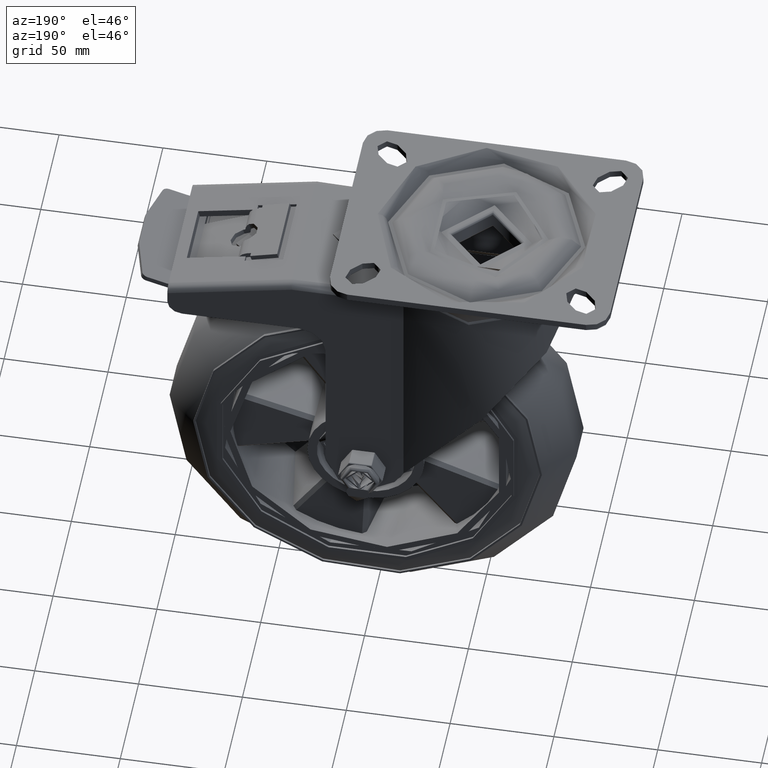
[diagram: clean part render]
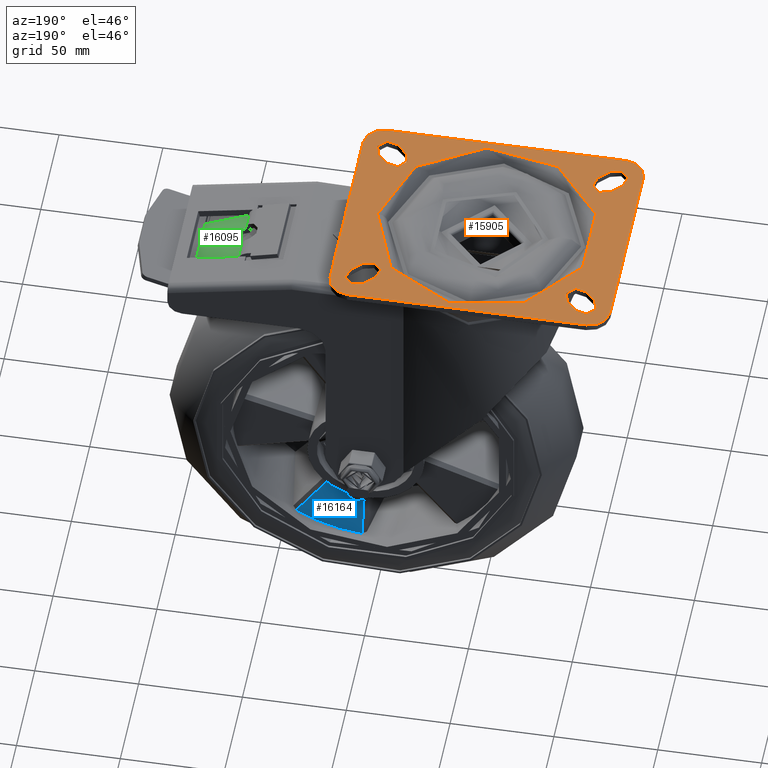
[diagram: same view with three faces highlighted in distinct colors, each labeled with its STEP entity id]
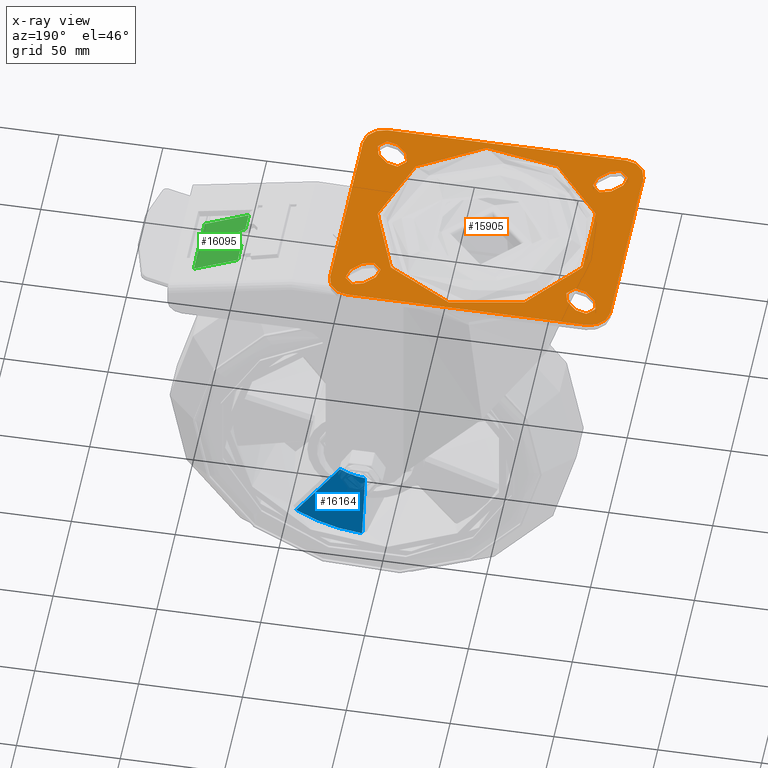
[diagram: x-ray of the same camera — body ghosted, the three highlighted faces saturated]
A machine part, auxiliary view with three faces highlighted in distinct colors.
The next image is the same camera in x-ray (body ghosted, the three faces saturated) — at least one of them is partly hidden behind the body in this view.
Their STEP definitions:

[orange] entity #15905 — the highlighted planar face has unit normal (0, 0, 1).
#807=FACE_BOUND('',#3119,.T.);
#808=FACE_BOUND('',#3120,.T.);
#809=FACE_BOUND('',#3121,.T.);
#810=FACE_BOUND('',#3122,.T.);
#811=FACE_BOUND('',#3123,.T.);
#1002=PLANE('',#17206);
#2161=FACE_OUTER_BOUND('',#3118,.T.);
#3118=EDGE_LOOP('',(#11215,#11216,#11217,#11218,#11219,#11220,#11221,#11222));
#3119=EDGE_LOOP('',(#11223));
#3120=EDGE_LOOP('',(#11224,#11225,#11226,#11227));
#3121=EDGE_LOOP('',(#11228,#11229,#11230,#11231));
#3122=EDGE_LOOP('',(#11232,#11233,#11234,#11235));
#3123=EDGE_LOOP('',(#11236,#11237,#11238,#11239));
#4219=LINE('',#25433,#5310);
#4220=LINE('',#25434,#5311);
#4221=LINE('',#25435,#5312);
#4222=LINE('',#25436,#5313);
#4223=LINE('',#25437,#5314);
#4224=LINE('',#25438,#5315);
#4225=LINE('',#25439,#5316);
#4226=LINE('',#25440,#5317);
#4227=LINE('',#25441,#5318);
#4228=LINE('',#25442,#5319);
#4229=LINE('',#25443,#5320);
#4230=LINE('',#25444,#5321);
#5310=VECTOR('',#18901,1000.);
#5311=VECTOR('',#18902,1000.);
#5312=VECTOR('',#18903,1000.);
#5313=VECTOR('',#18904,1000.);
#5314=VECTOR('',#18905,1000.);
#5315=VECTOR('',#18906,1000.);
#5316=VECTOR('',#18907,1000.);
#5317=VECTOR('',#18908,1000.);
#5318=VECTOR('',#18909,1000.);
#5319=VECTOR('',#18910,1000.);
#5320=VECTOR('',#18911,1000.);
#5321=VECTOR('',#18912,1000.);
#6327=CIRCLE('',#17050,5.5);
#6330=CIRCLE('',#17054,5.5);
#6331=CIRCLE('',#17056,5.5);
#6334=CIRCLE('',#17060,5.5);
#6335=CIRCLE('',#17062,5.5);
#6338=CIRCLE('',#17066,5.5);
#6339=CIRCLE('',#17068,5.5);
#6342=CIRCLE('',#17072,5.5);
#6343=CIRCLE('',#17074,10.);
#6345=CIRCLE('',#17077,10.);
#6347=CIRCLE('',#17080,10.);
#6349=CIRCLE('',#17083,10.);
#6356=CIRCLE('',#17092,52.4937460888595);
#6916=VERTEX_POINT('',#22515);
#6917=VERTEX_POINT('',#22516);
#6922=VERTEX_POINT('',#22527);
#6923=VERTEX_POINT('',#22529);
#6924=VERTEX_POINT('',#22533);
#6925=VERTEX_POINT('',#22534);
#6930=VERTEX_POINT('',#22545);
#6931=VERTEX_POINT('',#22547);
#6932=VERTEX_POINT('',#22551);
#6933=VERTEX_POINT('',#22552);
#6938=VERTEX_POINT('',#22563);
#6939=VERTEX_POINT('',#22565);
#6940=VERTEX_POINT('',#22569);
#6941=VERTEX_POINT('',#22570);
#6946=VERTEX_POINT('',#22581);
#6947=VERTEX_POINT('',#22583);
#6948=VERTEX_POINT('',#22587);
#6949=VERTEX_POINT('',#22588);
#6952=VERTEX_POINT('',#22596);
#6953=VERTEX_POINT('',#22597);
#6956=VERTEX_POINT('',#22605);
#6957=VERTEX_POINT('',#22606);
#6960=VERTEX_POINT('',#22614);
#6961=VERTEX_POINT('',#22615);
#6967=VERTEX_POINT('',#22631);
#8490=EDGE_CURVE('',#6916,#6917,#6327,.T.);
#8496=EDGE_CURVE('',#6923,#6922,#6330,.T.);
#8498=EDGE_CURVE('',#6924,#6925,#6331,.T.);
#8504=EDGE_CURVE('',#6931,#6930,#6334,.T.);
#8506=EDGE_CURVE('',#6932,#6933,#6335,.T.);
#8512=EDGE_CURVE('',#6939,#6938,#6338,.T.);
#8514=EDGE_CURVE('',#6940,#6941,#6339,.T.);
#8520=EDGE_CURVE('',#6947,#6946,#6342,.T.);
#8522=EDGE_CURVE('',#6948,#6949,#6343,.F.);
#8526=EDGE_CURVE('',#6952,#6953,#6345,.F.);
#8530=EDGE_CURVE('',#6956,#6957,#6347,.F.);
#8534=EDGE_CURVE('',#6960,#6961,#6349,.F.);
#8543=EDGE_CURVE('',#6967,#6967,#6356,.T.);
#8689=EDGE_CURVE('',#6953,#6956,#4219,.F.);
#8690=EDGE_CURVE('',#6949,#6952,#4220,.F.);
#8691=EDGE_CURVE('',#6961,#6948,#4221,.F.);
#8692=EDGE_CURVE('',#6957,#6960,#4222,.F.);
#8693=EDGE_CURVE('',#6925,#6931,#4223,.T.);
#8694=EDGE_CURVE('',#6930,#6924,#4224,.T.);
#8695=EDGE_CURVE('',#6917,#6923,#4225,.T.);
#8696=EDGE_CURVE('',#6922,#6916,#4226,.T.);
#8697=EDGE_CURVE('',#6933,#6939,#4227,.T.);
#8698=EDGE_CURVE('',#6938,#6932,#4228,.T.);
#8699=EDGE_CURVE('',#6941,#6947,#4229,.T.);
#8700=EDGE_CURVE('',#6946,#6940,#4230,.T.);
#11215=ORIENTED_EDGE('',*,*,#8530,.F.);
#11216=ORIENTED_EDGE('',*,*,#8689,.F.);
#11217=ORIENTED_EDGE('',*,*,#8526,.F.);
#11218=ORIENTED_EDGE('',*,*,#8690,.F.);
#11219=ORIENTED_EDGE('',*,*,#8522,.F.);
#11220=ORIENTED_EDGE('',*,*,#8691,.F.);
#11221=ORIENTED_EDGE('',*,*,#8534,.F.);
#11222=ORIENTED_EDGE('',*,*,#8692,.F.);
#11223=ORIENTED_EDGE('',*,*,#8543,.F.);
#11224=ORIENTED_EDGE('',*,*,#8498,.T.);
#11225=ORIENTED_EDGE('',*,*,#8693,.T.);
#11226=ORIENTED_EDGE('',*,*,#8504,.T.);
#11227=ORIENTED_EDGE('',*,*,#8694,.T.);
#11228=ORIENTED_EDGE('',*,*,#8490,.T.);
#11229=ORIENTED_EDGE('',*,*,#8695,.T.);
#11230=ORIENTED_EDGE('',*,*,#8496,.T.);
#11231=ORIENTED_EDGE('',*,*,#8696,.T.);
#11232=ORIENTED_EDGE('',*,*,#8506,.T.);
#11233=ORIENTED_EDGE('',*,*,#8697,.T.);
#11234=ORIENTED_EDGE('',*,*,#8512,.T.);
#11235=ORIENTED_EDGE('',*,*,#8698,.T.);
#11236=ORIENTED_EDGE('',*,*,#8514,.T.);
#11237=ORIENTED_EDGE('',*,*,#8699,.T.);
#11238=ORIENTED_EDGE('',*,*,#8520,.T.);
#11239=ORIENTED_EDGE('',*,*,#8700,.T.);
#15905=ADVANCED_FACE('',(#2161,#807,#808,#809,#810,#811),#1002,.T.);
#17050=AXIS2_PLACEMENT_3D('',#22517,#18513,#18514);
#17054=AXIS2_PLACEMENT_3D('',#22530,#18524,#18525);
#17056=AXIS2_PLACEMENT_3D('',#22535,#18529,#18530);
#17060=AXIS2_PLACEMENT_3D('',#22548,#18540,#18541);
#17062=AXIS2_PLACEMENT_3D('',#22553,#18545,#18546);
#17066=AXIS2_PLACEMENT_3D('',#22566,#18556,#18557);
#17068=AXIS2_PLACEMENT_3D('',#22571,#18561,#18562);
#17072=AXIS2_PLACEMENT_3D('',#22584,#18572,#18573);
#17074=AXIS2_PLACEMENT_3D('',#22589,#18577,#18578);
#17077=AXIS2_PLACEMENT_3D('',#22598,#18585,#18586);
#17080=AXIS2_PLACEMENT_3D('',#22607,#18593,#18594);
#17083=AXIS2_PLACEMENT_3D('',#22616,#18601,#18602);
#17092=AXIS2_PLACEMENT_3D('',#22633,#18621,#18622);
#17206=AXIS2_PLACEMENT_3D('',#25432,#18899,#18900);
#18513=DIRECTION('center_axis',(0.,0.,-1.));
#18514=DIRECTION('ref_axis',(1.,0.,0.));
#18524=DIRECTION('center_axis',(0.,0.,-1.));
#18525=DIRECTION('ref_axis',(1.,0.,0.));
#18529=DIRECTION('center_axis',(0.,0.,-1.));
#18530=DIRECTION('ref_axis',(1.,0.,0.));
#18540=DIRECTION('center_axis',(0.,0.,-1.));
#18541=DIRECTION('ref_axis',(1.,0.,0.));
#18545=DIRECTION('center_axis',(0.,0.,-1.));
#18546=DIRECTION('ref_axis',(-1.,0.,0.));
#18556=DIRECTION('center_axis',(0.,0.,-1.));
#18557=DIRECTION('ref_axis',(-1.,0.,0.));
#18561=DIRECTION('center_axis',(0.,0.,-1.));
#18562=DIRECTION('ref_axis',(-1.,0.,0.));
#18572=DIRECTION('center_axis',(0.,0.,-1.));
#18573=DIRECTION('ref_axis',(-1.,0.,0.));
#18577=DIRECTION('center_axis',(0.,0.,1.));
#18578=DIRECTION('ref_axis',(0.707106781186547,0.707106781186548,0.));
#18585=DIRECTION('center_axis',(0.,0.,1.));
#18586=DIRECTION('ref_axis',(0.707106781186547,-0.707106781186548,0.));
#18593=DIRECTION('center_axis',(0.,0.,1.));
#18594=DIRECTION('ref_axis',(-0.707106781186547,-0.707106781186548,0.));
#18601=DIRECTION('center_axis',(0.,0.,1.));
#18602=DIRECTION('ref_axis',(-0.707106781186547,0.707106781186548,0.));
#18621=DIRECTION('center_axis',(0.,0.,1.));
#18622=DIRECTION('ref_axis',(-1.,-9.91644751508222E-17,0.));
#18899=DIRECTION('center_axis',(0.,0.,1.));
#18900=DIRECTION('ref_axis',(1.,0.,0.));
#18901=DIRECTION('',(1.,0.,0.));
#18902=DIRECTION('',(0.,1.,0.));
#18903=DIRECTION('',(-1.,0.,0.));
#18904=DIRECTION('',(0.,-1.,0.));
#18905=DIRECTION('',(-0.707106781186548,-0.707106781186548,0.));
#18906=DIRECTION('',(0.707106781186548,0.707106781186548,0.));
#18907=DIRECTION('',(-0.707106781186548,0.707106781186548,0.));
#18908=DIRECTION('',(0.707106781186548,-0.707106781186548,0.));
#18909=DIRECTION('',(0.707106781186548,0.707106781186548,0.));
#18910=DIRECTION('',(-0.707106781186548,-0.707106781186548,0.));
#18911=DIRECTION('',(0.707106781186548,-0.707106781186548,0.));
#18912=DIRECTION('',(-0.707106781186548,0.707106781186548,0.));
#22515=CARTESIAN_POINT('',(-46.1360389693211,41.4142135623731,0.));
#22516=CARTESIAN_POINT('',(-53.9142135623731,33.6360389693211,0.));
#22517=CARTESIAN_POINT('Origin',(-50.0251262658471,37.5251262658471,0.));
#22527=CARTESIAN_POINT('',(-51.0857864376269,46.3639610306789,0.));
#22529=CARTESIAN_POINT('',(-58.8639610306789,38.5857864376269,0.));
#22530=CARTESIAN_POINT('Origin',(-54.9748737341529,42.4748737341529,0.));
#22533=CARTESIAN_POINT('',(-53.9142135623731,-33.6360389693211,0.));
#22534=CARTESIAN_POINT('',(-46.1360389693211,-41.4142135623731,0.));
#22535=CARTESIAN_POINT('Origin',(-50.0251262658471,-37.5251262658471,0.));
#22545=CARTESIAN_POINT('',(-58.8639610306789,-38.5857864376269,0.));
#22547=CARTESIAN_POINT('',(-51.0857864376269,-46.3639610306789,0.));
#22548=CARTESIAN_POINT('Origin',(-54.9748737341529,-42.4748737341529,0.));
#22551=CARTESIAN_POINT('',(53.9142135623731,33.6360389693211,0.));
#22552=CARTESIAN_POINT('',(46.1360389693211,41.4142135623731,0.));
#22553=CARTESIAN_POINT('Origin',(50.0251262658471,37.5251262658471,0.));
#22563=CARTESIAN_POINT('',(58.8639610306789,38.5857864376269,0.));
#22565=CARTESIAN_POINT('',(51.0857864376269,46.3639610306789,0.));
#22566=CARTESIAN_POINT('Origin',(54.9748737341529,42.4748737341529,0.));
#22569=CARTESIAN_POINT('',(46.1360389693211,-41.4142135623731,0.));
#22570=CARTESIAN_POINT('',(53.9142135623731,-33.6360389693211,0.));
#22571=CARTESIAN_POINT('Origin',(50.0251262658471,-37.5251262658471,0.));
#22581=CARTESIAN_POINT('',(51.0857864376269,-46.3639610306789,0.));
#22583=CARTESIAN_POINT('',(58.8639610306789,-38.5857864376269,0.));
#22584=CARTESIAN_POINT('Origin',(54.9748737341529,-42.4748737341529,0.));
#22587=CARTESIAN_POINT('',(57.5,55.,0.));
#22588=CARTESIAN_POINT('',(67.5,45.,0.));
#22589=CARTESIAN_POINT('Origin',(57.5,45.,0.));
#22596=CARTESIAN_POINT('',(67.5,-45.,0.));
#22597=CARTESIAN_POINT('',(57.5,-55.,0.));
#22598=CARTESIAN_POINT('Origin',(57.5,-45.,0.));
#22605=CARTESIAN_POINT('',(-57.5,-55.,0.));
#22606=CARTESIAN_POINT('',(-67.5,-45.,0.));
#22607=CARTESIAN_POINT('Origin',(-57.5,-45.,0.));
#22614=CARTESIAN_POINT('',(-67.5,45.,0.));
#22615=CARTESIAN_POINT('',(-57.5,55.,0.));
#22616=CARTESIAN_POINT('Origin',(-57.5,45.,0.));
#22631=CARTESIAN_POINT('',(52.4937460888595,1.16341445918998E-14,0.));
#22633=CARTESIAN_POINT('Origin',(0.,0.,0.));
#25432=CARTESIAN_POINT('Origin',(0.,0.,0.));
#25433=CARTESIAN_POINT('',(0.,-55.,0.));
#25434=CARTESIAN_POINT('',(67.5,0.,0.));
#25435=CARTESIAN_POINT('',(0.,55.,0.));
#25436=CARTESIAN_POINT('',(-67.5,0.,0.));
#25437=CARTESIAN_POINT('',(-25.485912703474,-20.764087296526,0.));
#25438=CARTESIAN_POINT('',(-33.264087296526,-12.985912703474,0.));
#25439=CARTESIAN_POINT('',(-33.264087296526,12.985912703474,0.));
#25440=CARTESIAN_POINT('',(-25.485912703474,20.764087296526,0.));
#25441=CARTESIAN_POINT('',(25.485912703474,20.764087296526,0.));
#25442=CARTESIAN_POINT('',(33.264087296526,12.985912703474,0.));
#25443=CARTESIAN_POINT('',(33.264087296526,-12.985912703474,0.));
#25444=CARTESIAN_POINT('',(25.485912703474,-20.764087296526,0.));

[blue] entity #16164 — the highlighted planar face has unit normal (0, -1, 0).
#1146=PLANE('',#17702);
#1568=B_SPLINE_CURVE_WITH_KNOTS('',3,(#30661,#30662,#30663,#30664,#30665,
#30666,#30667,#30668,#30669,#30670,#30671,#30672,#30673,#30674,#30675,#30676,
#30677),.UNSPECIFIED.,.F.,.F.,(4,2,2,2,2,2,2,1,4),(2.10476446793768E-9,
0.0027729427355307,0.0108168889700644,0.0158443553666479,0.0189865218645126,
0.0221286883623774,0.0271561547589609,0.0352001009934946,0.0379170093655938),
 .UNSPECIFIED.);
#1571=B_SPLINE_CURVE_WITH_KNOTS('',3,(#30934,#30935,#30936,#30937,#30938,
#30939,#30940,#30941,#30942,#30943,#30944,#30945,#30946,#30947),
 .UNSPECIFIED.,.F.,.F.,(4,2,2,2,2,2,4),(9.26530815615883E-6,0.00900776466432076,
0.0153816630866576,0.0193653496006181,0.0233490361145786,0.0297229345369154,
0.0379262725688413),.UNSPECIFIED.);
#2420=FACE_OUTER_BOUND('',#3410,.T.);
#3410=EDGE_LOOP('',(#12632,#12633,#12634,#12635));
#6563=CIRCLE('',#17662,66.);
#6568=CIRCLE('',#17668,28.1);
#7479=VERTEX_POINT('',#27789);
#7480=VERTEX_POINT('',#27800);
#7492=VERTEX_POINT('',#27877);
#7493=VERTEX_POINT('',#27888);
#9323=EDGE_CURVE('',#7479,#7480,#6563,.T.);
#9337=EDGE_CURVE('',#7493,#7492,#6568,.T.);
#9420=EDGE_CURVE('',#7493,#7479,#1568,.T.);
#9423=EDGE_CURVE('',#7480,#7492,#1571,.T.);
#12632=ORIENTED_EDGE('',*,*,#9420,.F.);
#12633=ORIENTED_EDGE('',*,*,#9337,.T.);
#12634=ORIENTED_EDGE('',*,*,#9423,.F.);
#12635=ORIENTED_EDGE('',*,*,#9323,.F.);
#16164=ADVANCED_FACE('',(#2420),#1146,.F.);
#17662=AXIS2_PLACEMENT_3D('',#27801,#20202,#20203);
#17668=AXIS2_PLACEMENT_3D('',#27889,#20215,#20216);
#17702=AXIS2_PLACEMENT_3D('',#31061,#20287,#20288);
#20202=DIRECTION('center_axis',(3.59602151677234E-15,-1.,-6.44248801041007E-16));
#20203=DIRECTION('ref_axis',(-0.809016994374947,-2.53056257514779E-15,-0.587785252292473));
#20215=DIRECTION('center_axis',(4.48275391881041E-15,-1.,0.));
#20216=DIRECTION('ref_axis',(-1.,-4.48275391881041E-15,0.));
#20287=DIRECTION('center_axis',(4.48275391881041E-15,-1.,0.));
#20288=DIRECTION('ref_axis',(0.809016994374947,3.62662410191852E-15,0.587785252292473));
#27789=CARTESIAN_POINT('',(3.85641966858817,17.7500000000001,-65.8872372113122));
#27800=CARTESIAN_POINT('',(35.6076372977754,17.7500000000002,-55.5706412242118));
#27801=CARTESIAN_POINT('Origin',(-9.71885671488072E-14,17.7500000000001,
-2.98073805919023E-14));
#27877=CARTESIAN_POINT('',(14.5311521995672,17.7500000000001,-24.0511042523953));
#27888=CARTESIAN_POINT('',(2.38093530355877,17.7500000000001,-27.998949035231));
#27889=CARTESIAN_POINT('Origin',(-6.94760696190698E-14,17.7500000000001,
0.));
#30661=CARTESIAN_POINT('Ctrl Pts',(2.38093530421804,17.7500000000001,-27.9989490350748));
#30662=CARTESIAN_POINT('Ctrl Pts',(2.41680088256069,17.7500000000001,-28.9225664814718));
#30663=CARTESIAN_POINT('Ctrl Pts',(2.45267404906598,17.7500000000001,-29.8461836332057));
#30664=CARTESIAN_POINT('Ctrl Pts',(2.59264023499983,17.7500000000001,-33.4490949049081));
#30665=CARTESIAN_POINT('Ctrl Pts',(2.69678942468149,17.7500000000001,-36.1283868441462));
#30666=CARTESIAN_POINT('Ctrl Pts',(2.866134814894,17.7500000000001,-40.4822322407396));
#30667=CARTESIAN_POINT('Ctrl Pts',(2.93129240516972,17.7500000000001,-42.1567871998993));
#30668=CARTESIAN_POINT('Ctrl Pts',(3.03721352898979,17.7500000000001,-44.8779374493444));
#30669=CARTESIAN_POINT('Ctrl Pts',(3.07796204747033,17.7500000000001,-45.9245333243284));
#30670=CARTESIAN_POINT('Ctrl Pts',(3.15947827700814,17.7500000000001,-48.0177243263985));
#30671=CARTESIAN_POINT('Ctrl Pts',(3.20024598808286,17.7500000000001,-49.0643194539741));
#30672=CARTESIAN_POINT('Ctrl Pts',(3.3062669094256,17.7500000000001,-51.7854658170392));
#30673=CARTESIAN_POINT('Ctrl Pts',(3.37153504371099,17.7500000000001,-53.4600164713307));
#30674=CARTESIAN_POINT('Ctrl Pts',(3.54129552827511,17.7500000000001,-57.8138457032267));
#30675=CARTESIAN_POINT('Ctrl Pts',(3.6811318616994,17.7500000000001,-61.3980704654931));
#30676=CARTESIAN_POINT('Ctrl Pts',(3.82107875376573,17.7500000000001,-64.9822909096335));
#30677=CARTESIAN_POINT('Ctrl Pts',(3.85641966938781,17.7500000000001,-65.8872372114043));
#30934=CARTESIAN_POINT('Ctrl Pts',(35.6076372973672,17.7500000000002,-55.5706412243492));
#30935=CARTESIAN_POINT('Ctrl Pts',(33.940614240845,17.7500000000002,-53.0770428014606));
#30936=CARTESIAN_POINT('Ctrl Pts',(32.273527086298,17.7500000000002,-50.583487229748));
#30937=CARTESIAN_POINT('Ctrl Pts',(29.4254829801681,17.7500000000002,-46.323747844562));
#30938=CARTESIAN_POINT('Ctrl Pts',(28.2445583210435,17.7500000000002,-44.5575424421562));
#30939=CARTESIAN_POINT('Ctrl Pts',(26.32550255613,17.7500000000002,-41.6874942323671));
#30940=CARTESIAN_POINT('Ctrl Pts',(25.5873913985139,17.7500000000002,-40.5836380864087));
#30941=CARTESIAN_POINT('Ctrl Pts',(24.1111434089041,17.7500000000002,-38.3759429627046));
#30942=CARTESIAN_POINT('Ctrl Pts',(23.3730065766267,17.7500000000002,-37.2721039845441));
#30943=CARTESIAN_POINT('Ctrl Pts',(21.4538173126991,17.7500000000002,-34.4021450426104));
#30944=CARTESIAN_POINT('Ctrl Pts',(20.2727447799034,17.7500000000002,-32.6360385203706));
#30945=CARTESIAN_POINT('Ctrl Pts',(17.5715318275288,17.7500000000002,-28.5969673917181));
#30946=CARTESIAN_POINT('Ctrl Pts',(16.0513696360099,17.7500000000001,-26.3240173473063));
#30947=CARTESIAN_POINT('Ctrl Pts',(14.5311521990547,17.7500000000001,-24.0511042529785));
#31061=CARTESIAN_POINT('Origin',(-8.30001424060322E-14,17.7500000000001,
-3.66527757186492E-14));

[green] entity #16095 — the highlighted planar face has unit normal (0.4193, 0, 0.9078).
#54=ELLIPSE('',#17539,5.56582008341149,5.49999999999999);
#1116=PLANE('',#17551);
#2351=FACE_OUTER_BOUND('',#3333,.T.);
#3333=EDGE_LOOP('',(#12197,#12198,#12199,#12200,#12201,#12202,#12203,#12204));
#4540=LINE('',#27186,#5631);
#4544=LINE('',#27196,#5635);
#4545=LINE('',#27200,#5636);
#4548=LINE('',#27208,#5639);
#4549=LINE('',#27210,#5640);
#4550=LINE('',#27212,#5641);
#4551=LINE('',#27213,#5642);
#5631=VECTOR('',#19898,1000.);
#5635=VECTOR('',#19908,999.999999999999);
#5636=VECTOR('',#19913,999.999999999999);
#5639=VECTOR('',#19920,1000.);
#5640=VECTOR('',#19921,1000.);
#5641=VECTOR('',#19922,1000.);
#5642=VECTOR('',#19923,1000.);
#7347=VERTEX_POINT('',#27128);
#7348=VERTEX_POINT('',#27130);
#7357=VERTEX_POINT('',#27183);
#7358=VERTEX_POINT('',#27185);
#7362=VERTEX_POINT('',#27198);
#7365=VERTEX_POINT('',#27207);
#7366=VERTEX_POINT('',#27209);
#7367=VERTEX_POINT('',#27211);
#9146=EDGE_CURVE('',#7348,#7347,#54,.T.);
#9157=EDGE_CURVE('',#7358,#7357,#4540,.T.);
#9163=EDGE_CURVE('',#7357,#7348,#4544,.T.);
#9165=EDGE_CURVE('',#7347,#7362,#4545,.T.);
#9169=EDGE_CURVE('',#7362,#7365,#4548,.T.);
#9170=EDGE_CURVE('',#7365,#7366,#4549,.T.);
#9171=EDGE_CURVE('',#7366,#7367,#4550,.T.);
#9172=EDGE_CURVE('',#7367,#7358,#4551,.T.);
#12197=ORIENTED_EDGE('',*,*,#9163,.T.);
#12198=ORIENTED_EDGE('',*,*,#9146,.T.);
#12199=ORIENTED_EDGE('',*,*,#9165,.T.);
#12200=ORIENTED_EDGE('',*,*,#9169,.T.);
#12201=ORIENTED_EDGE('',*,*,#9170,.T.);
#12202=ORIENTED_EDGE('',*,*,#9171,.T.);
#12203=ORIENTED_EDGE('',*,*,#9172,.T.);
#12204=ORIENTED_EDGE('',*,*,#9157,.T.);
#16095=ADVANCED_FACE('',(#2351),#1116,.T.);
#17539=AXIS2_PLACEMENT_3D('',#27131,#19883,#19884);
#17551=AXIS2_PLACEMENT_3D('',#27206,#19918,#19919);
#19883=DIRECTION('center_axis',(-0.419322763155603,0.,-0.907837221256955));
#19884=DIRECTION('ref_axis',(0.907837221256955,0.,-0.419322763155603));
#19898=DIRECTION('',(0.,-1.,0.));
#19908=DIRECTION('',(0.907837221256955,-3.42841808570442E-15,-0.419322763155603));
#19913=DIRECTION('',(-0.907837221256955,-3.85697034641747E-15,0.419322763155603));
#19918=DIRECTION('center_axis',(0.419322763155603,0.,0.907837221256955));
#19919=DIRECTION('ref_axis',(-0.907837221256955,0.,0.419322763155603));
#19920=DIRECTION('',(0.,-1.,0.));
#19921=DIRECTION('',(0.907837221256955,0.,-0.419322763155603));
#19922=DIRECTION('',(0.,1.,0.));
#19923=DIRECTION('',(-0.907837221256955,0.,0.419322763155603));
#27128=CARTESIAN_POINT('',(118.280917518044,-5.49999999999999,-28.4168660075152));
#27130=CARTESIAN_POINT('',(118.280917518044,5.49999999999999,-28.4168660075152));
#27131=CARTESIAN_POINT('Origin',(118.280917518044,6.73533494602307E-16,
-28.4168660075152));
#27183=CARTESIAN_POINT('',(117.1977743412,5.5,-27.9165708233427));
#27185=CARTESIAN_POINT('',(117.1977743412,15.,-27.9165708233427));
#27186=CARTESIAN_POINT('',(117.1977743412,0.,-27.9165708233427));
#27196=CARTESIAN_POINT('',(121.856043712187,5.49999999999998,-30.0681882481725));
#27198=CARTESIAN_POINT('',(117.1977743412,-5.5,-27.9165708233427));
#27200=CARTESIAN_POINT('',(121.856043712187,-5.49999999999997,-30.0681882481725));
#27206=CARTESIAN_POINT('Origin',(127.79912406822,0.,-32.8132496074072));
#27207=CARTESIAN_POINT('',(117.1977743412,-15.,-27.9165708233427));
#27208=CARTESIAN_POINT('',(117.1977743412,0.,-27.9165708233427));
#27209=CARTESIAN_POINT('',(138.400473795239,-15.,-37.7099283914715));
#27210=CARTESIAN_POINT('',(117.197774341199,-15.,-27.9165708233427));
#27211=CARTESIAN_POINT('',(138.400473795239,15.,-37.7099283914715));
#27212=CARTESIAN_POINT('',(138.40047379524,0.,-37.7099283914716));
#27213=CARTESIAN_POINT('',(117.197774341199,15.,-27.9165708233427));